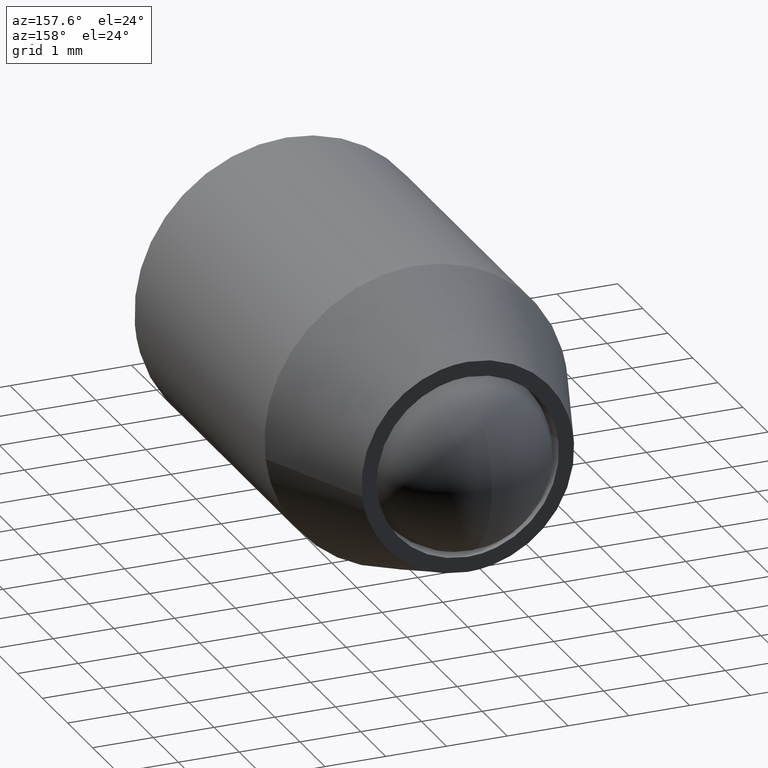
[diagram: clean part render]
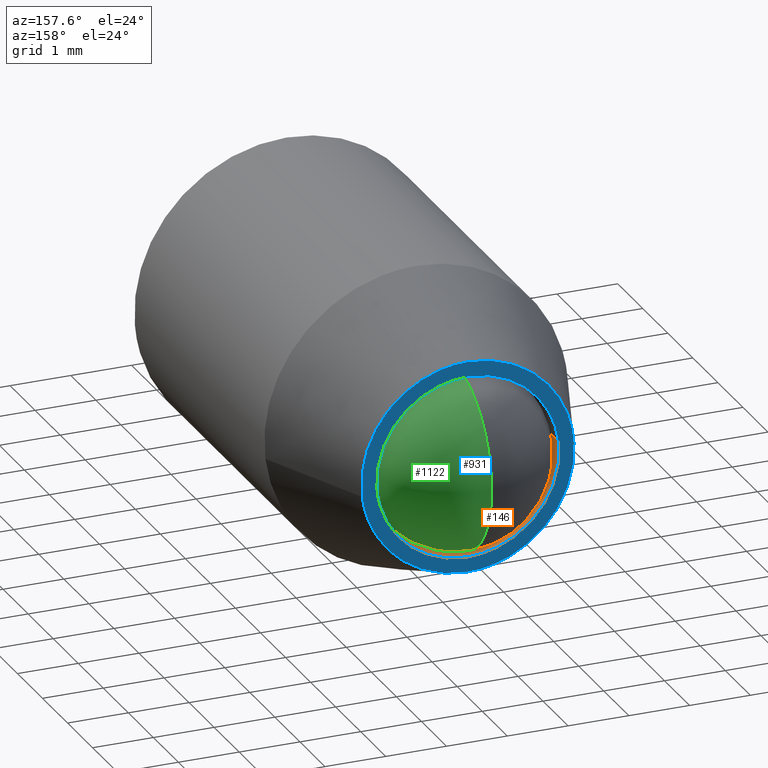
[diagram: same view with three faces highlighted in distinct colors, each labeled with its STEP entity id]
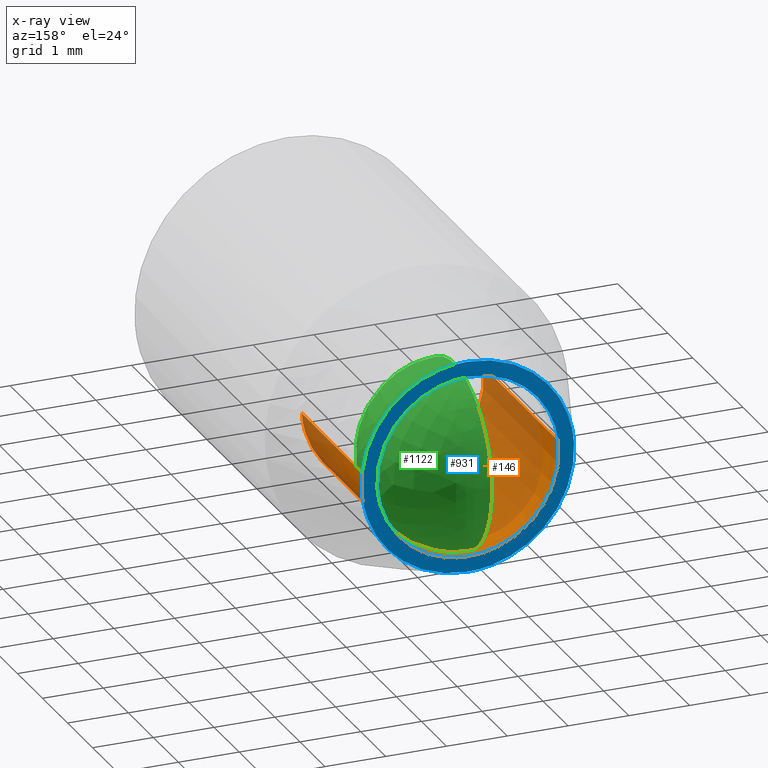
[diagram: x-ray of the same camera — body ghosted, the three highlighted faces saturated]
A machine part, auxiliary view with three faces highlighted in distinct colors.
The next image is the same camera in x-ray (body ghosted, the three faces saturated) — at least one of them is partly hidden behind the body in this view.
Their STEP definitions:

[orange] entity #146 — the highlighted face is a freeform B-spline surface patch.
#44=CARTESIAN_POINT('',(-1.489514289545500,0.075000000000000,0.177051351985138));
#45=CARTESIAN_POINT('',(-1.494581423172908,0.075000000000000,0.134422092956966));
#46=CARTESIAN_POINT('',(-1.497202197632800,0.075000000000000,0.091572809302285));
#47=CARTESIAN_POINT('',(-1.588775006935085,0.075000000000000,-1.405629388330515));
#48=CARTESIAN_POINT('',(-0.091572809302285,0.075000000000000,-1.497202197632800));
#49=CARTESIAN_POINT('',(1.405629388330515,0.075000000000000,-1.588775006935085));
#50=CARTESIAN_POINT('',(1.497202197632800,0.075000000000000,-0.091572809302285));
#51=CARTESIAN_POINT('',(-1.489514289545500,-3.076875000000002,0.177051351985138));
#52=CARTESIAN_POINT('',(-1.494581423172908,-3.076875000000001,0.134422092956966));
#53=CARTESIAN_POINT('',(-1.497202197632800,-3.076875000000001,0.091572809302285));
#54=CARTESIAN_POINT('',(-1.588775006935085,-3.076875000000000,-1.405629388330515));
#55=CARTESIAN_POINT('',(-0.091572809302285,-3.076875000000001,-1.497202197632800));
#56=CARTESIAN_POINT('',(1.405629388330515,-3.076875000000000,-1.588775006935085));
#57=CARTESIAN_POINT('',(1.497202197632800,-3.076875000000001,-0.091572809302285));
#65=(BOUNDED_SURFACE()B_SPLINE_SURFACE(2,1,((#44,#51),(#45,#52),(#46,#53),(#47,#54),(#48,#55),(#49,#56),(#50,#57)),.UNSPECIFIED.,.F.,.F.,.U.)B_SPLINE_SURFACE_WITH_KNOTS((3,2,2,3),(2,2),(3.078760800517997,3.141592653589793,4.712388980384690,6.283185307179586),(0.0,3.151875000000001),.UNSPECIFIED.)GEOMETRIC_REPRESENTATION_ITEM()RATIONAL_B_SPLINE_SURFACE(((0.977505800795127,0.977505800795127),(0.988284271247462,0.988284271247462),(1.0,1.0),(0.707106781186548,0.707106781186548),(1.0,1.0),(0.707106781186548,0.707106781186548),(1.0,1.0)))REPRESENTATION_ITEM('')SURFACE());
#66=CARTESIAN_POINT('',(-1.489514571576380,-3.000000000000006,0.177048979256939));
#67=VERTEX_POINT('',#66);
#68=CARTESIAN_POINT('',(0.0,-3.0,-1.500000000000000));
#69=VERTEX_POINT('',#68);
#70=CARTESIAN_POINT('',(-1.489514571576379,-3.000000000000006,0.177048979256939));
#71=CARTESIAN_POINT('',(-1.500000000000000,-3.0,0.088834980571960));
#72=CARTESIAN_POINT('',(-1.500000000000000,-3.0,0.0));
#73=CARTESIAN_POINT('',(-1.500000000000000,-3.0,-1.500000000000000));
#74=CARTESIAN_POINT('',(0.0,-3.0,-1.500000000000000));
#82=(BOUNDED_CURVE()B_SPLINE_CURVE(2,(#70,#71,#72,#73,#74),.UNSPECIFIED.,.F.,.U.)B_SPLINE_CURVE_WITH_KNOTS((3,2,3),(0.229562742730122,0.250000000000000,0.500000000000000),.UNSPECIFIED.)CURVE()GEOMETRIC_REPRESENTATION_ITEM()RATIONAL_B_SPLINE_CURVE((0.956027281859960,0.976056263738028,1.0,0.707106781186548,1.0))REPRESENTATION_ITEM(''));
#83=EDGE_CURVE('',#67,#69,#82,.T.);
#84=ORIENTED_EDGE('',*,*,#83,.T.);
#85=CARTESIAN_POINT('',(1.497202266602667,-2.999999999999996,-0.091571681640985));
#86=VERTEX_POINT('',#85);
#87=CARTESIAN_POINT('',(0.0,-3.0,-1.500000000000000));
#88=CARTESIAN_POINT('',(1.411060165124999,-3.0,-1.500000000000000));
#89=CARTESIAN_POINT('',(1.497202266602667,-2.999999999999996,-0.091571681640985));
#97=(BOUNDED_CURVE()B_SPLINE_CURVE(2,(#87,#88,#89),.UNSPECIFIED.,.F.,.U.)B_SPLINE_CURVE_WITH_KNOTS((3,3),(0.500000000000000,0.739333092200605),.UNSPECIFIED.)CURVE()GEOMETRIC_REPRESENTATION_ITEM()RATIONAL_B_SPLINE_CURVE((1.0,0.719603841027152,0.976072320199457))REPRESENTATION_ITEM(''));
#98=EDGE_CURVE('',#69,#86,#97,.T.);
#99=ORIENTED_EDGE('',*,*,#98,.T.);
#100=CARTESIAN_POINT('',(1.497202265752766,-6.938894E-017,-0.091571695537096));
#101=VERTEX_POINT('',#100);
#102=CARTESIAN_POINT('',(1.497202265752766,-6.938894E-017,-0.091571695537096));
#103=CARTESIAN_POINT('',(1.497202266602667,-2.999999999999996,-0.091571681640985));
#104=QUASI_UNIFORM_CURVE('',1,(#102,#103),.UNSPECIFIED.,.F.,.U.);
#105=EDGE_CURVE('',#101,#86,#104,.T.);
#106=ORIENTED_EDGE('',*,*,#105,.F.);
#107=CARTESIAN_POINT('',(0.0,0.0,-1.500000000000000));
#108=VERTEX_POINT('',#107);
#109=CARTESIAN_POINT('',(0.0,0.0,-1.500000000000000));
#110=CARTESIAN_POINT('',(1.411060152003934,0.0,-1.500000000000000));
#111=CARTESIAN_POINT('',(1.497202265752766,-6.938894E-017,-0.091571695537096));
#119=(BOUNDED_CURVE()B_SPLINE_CURVE(2,(#109,#110,#111),.UNSPECIFIED.,.F.,.U.)B_SPLINE_CURVE_WITH_KNOTS((3,3),(0.500000000000000,0.739333090599131),.UNSPECIFIED.)CURVE()GEOMETRIC_REPRESENTATION_ITEM()RATIONAL_B_SPLINE_CURVE((1.0,0.719603842903395,0.976072316767190))REPRESENTATION_ITEM(''));
#120=EDGE_CURVE('',#108,#101,#119,.T.);
#121=ORIENTED_EDGE('',*,*,#120,.F.);
#122=CARTESIAN_POINT('',(-1.489514568095193,-6.388714E-017,0.177049008544585));
#123=VERTEX_POINT('',#122);
#124=CARTESIAN_POINT('',(-1.489514568095193,-6.388714E-017,0.177049008544585));
#125=CARTESIAN_POINT('',(-1.500000000000000,0.0,0.088834995370588));
#126=CARTESIAN_POINT('',(-1.500000000000000,0.0,0.0));
#127=CARTESIAN_POINT('',(-1.500000000000000,0.0,-1.500000000000000));
#128=CARTESIAN_POINT('',(0.0,0.0,-1.500000000000000));
#136=(BOUNDED_CURVE()B_SPLINE_CURVE(2,(#124,#125,#126,#127,#128),.UNSPECIFIED.,.F.,.U.)B_SPLINE_CURVE_WITH_KNOTS((3,2,3),(0.229562739407087,0.250000000000000,0.500000000000000),.UNSPECIFIED.)CURVE()GEOMETRIC_REPRESENTATION_ITEM()RATIONAL_B_SPLINE_CURVE((0.956027275346658,0.976056259844850,1.0,0.707106781186548,1.0))REPRESENTATION_ITEM(''));
#137=EDGE_CURVE('',#123,#108,#136,.T.);
#138=ORIENTED_EDGE('',*,*,#137,.F.);
#139=CARTESIAN_POINT('',(-1.489514568095193,-6.388714E-017,0.177049008544585));
#140=CARTESIAN_POINT('',(-1.489514571576380,-3.000000000000006,0.177048979256939));
#141=QUASI_UNIFORM_CURVE('',1,(#139,#140),.UNSPECIFIED.,.F.,.U.);
#142=EDGE_CURVE('',#123,#67,#141,.T.);
#143=ORIENTED_EDGE('',*,*,#142,.T.);
#144=EDGE_LOOP('',(#84,#99,#106,#121,#138,#143));
#145=FACE_OUTER_BOUND('',#144,.T.);
#146=ADVANCED_FACE('',(#145),#65,.F.);

[blue] entity #931 — the highlighted face is a freeform B-spline surface patch.
#100=CARTESIAN_POINT('',(1.497202265752766,-6.938894E-017,-0.091571695537096));
#101=VERTEX_POINT('',#100);
#107=CARTESIAN_POINT('',(0.0,0.0,-1.500000000000000));
#108=VERTEX_POINT('',#107);
#109=CARTESIAN_POINT('',(0.0,0.0,-1.500000000000000));
#110=CARTESIAN_POINT('',(1.411060152003934,0.0,-1.500000000000000));
#111=CARTESIAN_POINT('',(1.497202265752766,-6.938894E-017,-0.091571695537096));
#119=(BOUNDED_CURVE()B_SPLINE_CURVE(2,(#109,#110,#111),.UNSPECIFIED.,.F.,.U.)B_SPLINE_CURVE_WITH_KNOTS((3,3),(0.500000000000000,0.739333090599131),.UNSPECIFIED.)CURVE()GEOMETRIC_REPRESENTATION_ITEM()RATIONAL_B_SPLINE_CURVE((1.0,0.719603842903395,0.976072316767190))REPRESENTATION_ITEM(''));
#120=EDGE_CURVE('',#108,#101,#119,.T.);
#122=CARTESIAN_POINT('',(-1.489514568095193,-6.388714E-017,0.177049008544585));
#123=VERTEX_POINT('',#122);
#124=CARTESIAN_POINT('',(-1.489514568095193,-6.388714E-017,0.177049008544585));
#125=CARTESIAN_POINT('',(-1.500000000000000,0.0,0.088834995370588));
#126=CARTESIAN_POINT('',(-1.500000000000000,0.0,0.0));
#127=CARTESIAN_POINT('',(-1.500000000000000,0.0,-1.500000000000000));
#128=CARTESIAN_POINT('',(0.0,0.0,-1.500000000000000));
#136=(BOUNDED_CURVE()B_SPLINE_CURVE(2,(#124,#125,#126,#127,#128),.UNSPECIFIED.,.F.,.U.)B_SPLINE_CURVE_WITH_KNOTS((3,2,3),(0.229562739407087,0.250000000000000,0.500000000000000),.UNSPECIFIED.)CURVE()GEOMETRIC_REPRESENTATION_ITEM()RATIONAL_B_SPLINE_CURVE((0.956027275346658,0.976056259844850,1.0,0.707106781186548,1.0))REPRESENTATION_ITEM(''));
#137=EDGE_CURVE('',#123,#108,#136,.T.);
#185=CARTESIAN_POINT('',(0.0,0.0,1.500000000000000));
#186=VERTEX_POINT('',#185);
#187=CARTESIAN_POINT('',(0.0,0.0,1.500000000000000));
#188=CARTESIAN_POINT('',(-1.332263899720056,0.0,1.500000000000001));
#189=CARTESIAN_POINT('',(-1.489514568095193,-6.388714E-017,0.177049008544585));
#197=(BOUNDED_CURVE()B_SPLINE_CURVE(2,(#187,#188,#189),.UNSPECIFIED.,.F.,.U.)B_SPLINE_CURVE_WITH_KNOTS((3,3),(0.0,0.229562739407087),.UNSPECIFIED.)CURVE()GEOMETRIC_REPRESENTATION_ITEM()RATIONAL_B_SPLINE_CURVE((1.0,0.731050521341698,0.956027275346658))REPRESENTATION_ITEM(''));
#198=EDGE_CURVE('',#186,#123,#197,.T.);
#200=CARTESIAN_POINT('',(1.497202265752766,-6.938894E-017,-0.091571695537096));
#201=CARTESIAN_POINT('',(1.500000000000000,0.0,-0.045828586503876));
#202=CARTESIAN_POINT('',(1.500000000000000,0.0,0.0));
#203=CARTESIAN_POINT('',(1.500000000000000,0.0,1.500000000000000));
#204=CARTESIAN_POINT('',(0.0,0.0,1.500000000000000));
#212=(BOUNDED_CURVE()B_SPLINE_CURVE(2,(#200,#201,#202,#203,#204),.UNSPECIFIED.,.F.,.U.)B_SPLINE_CURVE_WITH_KNOTS((3,2,3),(0.739333090599131,0.750000000000000,1.0),.UNSPECIFIED.)CURVE()GEOMETRIC_REPRESENTATION_ITEM()RATIONAL_B_SPLINE_CURVE((0.976072316767190,0.987502938283152,1.0,0.707106781186548,1.0))REPRESENTATION_ITEM(''));
#213=EDGE_CURVE('',#101,#186,#212,.T.);
#492=CARTESIAN_POINT('',(1.737766671136094,-1.200028E-012,-0.206559910655735));
#493=VERTEX_POINT('',#492);
#499=CARTESIAN_POINT('',(0.0,0.0,1.750000000000000));
#500=VERTEX_POINT('',#499);
#501=CARTESIAN_POINT('',(1.737766671136094,-1.200028E-012,-0.206559910655735));
#502=CARTESIAN_POINT('',(1.750000000000000,0.0,-0.103642209397266));
#503=CARTESIAN_POINT('',(1.750000000000000,0.0,-5.143347E-016));
#504=CARTESIAN_POINT('',(1.750000000000000,0.0,1.750000000000000));
#505=CARTESIAN_POINT('',(0.0,0.0,1.750000000000000));
#513=(BOUNDED_CURVE()B_SPLINE_CURVE(2,(#501,#502,#503,#504,#505),.UNSPECIFIED.,.F.,.U.)B_SPLINE_CURVE_WITH_KNOTS((3,2,3),(0.229562473514408,0.250000000000000,0.500000000000000),.UNSPECIFIED.)CURVE()GEOMETRIC_REPRESENTATION_ITEM()RATIONAL_B_SPLINE_CURVE((0.956026754185463,0.976055948332199,1.0,0.707106781186547,1.0))REPRESENTATION_ITEM(''));
#514=EDGE_CURVE('',#493,#500,#513,.T.);
#516=CARTESIAN_POINT('',(-1.746735897238305,-1.256870E-012,0.106834944192873));
#517=VERTEX_POINT('',#516);
#518=CARTESIAN_POINT('',(0.0,0.0,1.750000000000000));
#519=CARTESIAN_POINT('',(-1.646235617072029,0.0,1.749999999999999));
#520=CARTESIAN_POINT('',(-1.746735897238305,-1.256870E-012,0.106834944192873));
#528=(BOUNDED_CURVE()B_SPLINE_CURVE(2,(#518,#519,#520),.UNSPECIFIED.,.F.,.U.)B_SPLINE_CURVE_WITH_KNOTS((3,3),(0.500000000000000,0.739332962240615),.UNSPECIFIED.)CURVE()GEOMETRIC_REPRESENTATION_ITEM()RATIONAL_B_SPLINE_CURVE((1.0,0.719603993284751,0.976072041670301))REPRESENTATION_ITEM(''));
#529=EDGE_CURVE('',#500,#517,#528,.T.);
#562=CARTESIAN_POINT('',(0.0,0.0,-1.750000000000000));
#563=VERTEX_POINT('',#562);
#564=CARTESIAN_POINT('',(-1.746735897238305,-1.256870E-012,0.106834944192873));
#565=CARTESIAN_POINT('',(-1.750000000000000,0.0,0.053467335779395));
#566=CARTESIAN_POINT('',(-1.750000000000000,0.0,-5.143347E-016));
#567=CARTESIAN_POINT('',(-1.750000000000000,0.0,-1.750000000000000));
#568=CARTESIAN_POINT('',(0.0,0.0,-1.750000000000000));
#576=(BOUNDED_CURVE()B_SPLINE_CURVE(2,(#564,#565,#566,#567,#568),.UNSPECIFIED.,.F.,.U.)B_SPLINE_CURVE_WITH_KNOTS((3,2,3),(0.739332962240616,0.750000000000000,1.0),.UNSPECIFIED.)CURVE()GEOMETRIC_REPRESENTATION_ITEM()RATIONAL_B_SPLINE_CURVE((0.976072041670303,0.987502787901797,1.0,0.707106781186547,1.0))REPRESENTATION_ITEM(''));
#577=EDGE_CURVE('',#517,#563,#576,.T.);
#579=CARTESIAN_POINT('',(0.0,0.0,-1.750000000000000));
#580=CARTESIAN_POINT('',(1.554305420403444,0.0,-1.750000000000000));
#581=CARTESIAN_POINT('',(1.737766671136095,-1.200028E-012,-0.206559910655735));
#589=(BOUNDED_CURVE()B_SPLINE_CURVE(2,(#579,#580,#581),.UNSPECIFIED.,.F.,.U.)B_SPLINE_CURVE_WITH_KNOTS((3,3),(0.0,0.229562473514408),.UNSPECIFIED.)CURVE()GEOMETRIC_REPRESENTATION_ITEM()RATIONAL_B_SPLINE_CURVE((1.0,0.731050832854348,0.956026754185463))REPRESENTATION_ITEM(''));
#590=EDGE_CURVE('',#563,#493,#589,.T.);
#914=CARTESIAN_POINT('',(-1.924782399771807,0.0,1.924824993216321));
#915=CARTESIAN_POINT('',(-1.924782399771807,0.0,-1.924825087093637));
#916=CARTESIAN_POINT('',(1.924793164370653,0.0,1.924824993216321));
#917=CARTESIAN_POINT('',(1.924793164370653,0.0,-1.924825087093637));
#918=B_SPLINE_SURFACE_WITH_KNOTS('',1,1,((#914,#916),(#915,#917)),.UNSPECIFIED.,.F.,.F.,.U.,(2,2),(2,2),(0.0,3.849650080309957),(0.0,3.849575564142461),.UNSPECIFIED.);
#919=ORIENTED_EDGE('',*,*,#577,.F.);
#920=ORIENTED_EDGE('',*,*,#529,.F.);
#921=ORIENTED_EDGE('',*,*,#514,.F.);
#922=ORIENTED_EDGE('',*,*,#590,.F.);
#923=EDGE_LOOP('',(#919,#920,#921,#922));
#924=FACE_OUTER_BOUND('',#923,.T.);
#925=ORIENTED_EDGE('',*,*,#120,.T.);
#926=ORIENTED_EDGE('',*,*,#213,.T.);
#927=ORIENTED_EDGE('',*,*,#198,.T.);
#928=ORIENTED_EDGE('',*,*,#137,.T.);
#929=EDGE_LOOP('',(#925,#926,#927,#928));
#930=FACE_BOUND('',#929,.T.);
#931=ADVANCED_FACE('',(#924,#930),#918,.F.);

[green] entity #1122 — the highlighted face is a freeform B-spline surface patch.
#1037=CARTESIAN_POINT('',(0.0,0.950000000000000,4.806580E-016));
#1038=VERTEX_POINT('',#1037);
#1039=CARTESIAN_POINT('',(0.0,-2.050000000000000,4.806580E-016));
#1040=VERTEX_POINT('',#1039);
#1041=CARTESIAN_POINT('',(0.0,0.950000000000000,4.806580E-016));
#1042=CARTESIAN_POINT('',(0.0,0.950000000000000,-1.500000000000000));
#1043=CARTESIAN_POINT('',(0.0,-0.550000000000000,-1.500000000000000));
#1044=CARTESIAN_POINT('',(0.0,-2.050000000000001,-1.500000000000000));
#1045=CARTESIAN_POINT('',(0.0,-2.050000000000000,4.806580E-016));
#1053=(BOUNDED_CURVE()B_SPLINE_CURVE(2,(#1041,#1042,#1043,#1044,#1045),.UNSPECIFIED.,.F.,.U.)B_SPLINE_CURVE_WITH_KNOTS((3,2,3),(0.0,0.500000000000000,1.0),.UNSPECIFIED.)CURVE()GEOMETRIC_REPRESENTATION_ITEM()RATIONAL_B_SPLINE_CURVE((1.0,0.707106781186548,1.0,0.707106781186548,1.0))REPRESENTATION_ITEM(''));
#1054=EDGE_CURVE('',#1038,#1040,#1053,.T.);
#1056=CARTESIAN_POINT('',(0.0,0.950000000000000,4.806580E-016));
#1057=CARTESIAN_POINT('',(0.0,0.950000000000000,1.500000000000001));
#1058=CARTESIAN_POINT('',(0.0,-0.550000000000000,1.500000000000000));
#1059=CARTESIAN_POINT('',(0.0,-2.050000000000001,1.500000000000001));
#1060=CARTESIAN_POINT('',(0.0,-2.050000000000000,4.806580E-016));
#1068=(BOUNDED_CURVE()B_SPLINE_CURVE(2,(#1056,#1057,#1058,#1059,#1060),.UNSPECIFIED.,.F.,.U.)B_SPLINE_CURVE_WITH_KNOTS((3,2,3),(0.0,0.500000000000000,1.0),.UNSPECIFIED.)CURVE()GEOMETRIC_REPRESENTATION_ITEM()RATIONAL_B_SPLINE_CURVE((1.0,0.707106781186548,1.0,0.707106781186548,1.0))REPRESENTATION_ITEM(''));
#1069=EDGE_CURVE('',#1038,#1040,#1068,.T.);
#1074=CARTESIAN_POINT('',(-0.562500000000000,-1.533258295159517,-0.983258295159517));
#1075=CARTESIAN_POINT('',(-0.367924528301887,-1.440498078635034,-1.187330771513379));
#1076=CARTESIAN_POINT('',(-0.071428571428571,-0.924574588632197,-1.498298354528787));
#1077=CARTESIAN_POINT('',(-0.071428571428571,-0.175425411367803,-1.498298354528787));
#1078=CARTESIAN_POINT('',(-0.367924528301887,0.340498078635034,-1.187330771513379));
#1079=CARTESIAN_POINT('',(-0.562500000000000,0.433258295159517,-0.983258295159517));
#1080=CARTESIAN_POINT('',(-0.367924528301887,-1.737330771513379,-0.890498078635034));
#1081=CARTESIAN_POINT('',(-0.071428571428571,-1.673723765896591,-1.123723765896590));
#1082=CARTESIAN_POINT('',(0.435483870967742,-1.057488152340395,-1.522464457021187));
#1083=CARTESIAN_POINT('',(0.435483870967742,-0.042511847659604,-1.522464457021187));
#1084=CARTESIAN_POINT('',(-0.071428571428571,0.573723765896590,-1.123723765896590));
#1085=CARTESIAN_POINT('',(-0.367924528301887,0.637330771513379,-0.890498078635034));
#1086=CARTESIAN_POINT('',(-0.071428571428571,-2.048298354528788,-0.374574588632196));
#1087=CARTESIAN_POINT('',(0.435483870967742,-2.072464457021187,-0.507488152340395));
#1088=CARTESIAN_POINT('',(1.500000000000000,-1.336606636127613,-0.786606636127613));
#1089=CARTESIAN_POINT('',(1.500000000000000,0.236606636127613,-0.786606636127613));
#1090=CARTESIAN_POINT('',(0.435483870967742,0.972464457021187,-0.507488152340395));
#1091=CARTESIAN_POINT('',(-0.071428571428571,0.948298354528788,-0.374574588632196));
#1092=CARTESIAN_POINT('',(-0.071428571428571,-2.048298354528788,0.374574588632197));
#1093=CARTESIAN_POINT('',(0.435483870967742,-2.072464457021187,0.507488152340396));
#1094=CARTESIAN_POINT('',(1.500000000000000,-1.336606636127613,0.786606636127614));
#1095=CARTESIAN_POINT('',(1.500000000000000,0.236606636127613,0.786606636127614));
#1096=CARTESIAN_POINT('',(0.435483870967742,0.972464457021187,0.507488152340396));
#1097=CARTESIAN_POINT('',(-0.071428571428571,0.948298354528788,0.374574588632197));
#1098=CARTESIAN_POINT('',(-0.367924528301887,-1.737330771513379,0.890498078635034));
#1099=CARTESIAN_POINT('',(-0.071428571428571,-1.673723765896591,1.123723765896591));
#1100=CARTESIAN_POINT('',(0.435483870967742,-1.057488152340395,1.522464457021188));
#1101=CARTESIAN_POINT('',(0.435483870967742,-0.042511847659604,1.522464457021188));
#1102=CARTESIAN_POINT('',(-0.071428571428571,0.573723765896590,1.123723765896591));
#1103=CARTESIAN_POINT('',(-0.367924528301887,0.637330771513379,0.890498078635034));
#1104=CARTESIAN_POINT('',(-0.562500000000000,-1.533258295159517,0.983258295159517));
#1105=CARTESIAN_POINT('',(-0.367924528301887,-1.440498078635034,1.187330771513379));
#1106=CARTESIAN_POINT('',(-0.071428571428571,-0.924574588632197,1.498298354528788));
#1107=CARTESIAN_POINT('',(-0.071428571428571,-0.175425411367803,1.498298354528788));
#1108=CARTESIAN_POINT('',(-0.367924528301887,0.340498078635034,1.187330771513379));
#1109=CARTESIAN_POINT('',(-0.562500000000000,0.433258295159517,0.983258295159517));
#1117=(BOUNDED_SURFACE()B_SPLINE_SURFACE(2,2,((#1074,#1080,#1086,#1092,#1098,#1104),(#1075,#1081,#1087,#1093,#1099,#1105),(#1076,#1082,#1088,#1094,#1100,#1106),(#1077,#1083,#1089,#1095,#1101,#1107),(#1078,#1084,#1090,#1096,#1102,#1108),(#1079,#1085,#1091,#1097,#1103,#1109)),.UNSPECIFIED.,.F.,.F.,.U.)GEOMETRIC_REPRESENTATION_ITEM()QUASI_UNIFORM_SURFACE()RATIONAL_B_SPLINE_SURFACE(((3.200000000000000,2.650000000000000,2.100000000000000,2.100000000000000,2.650000000000000,3.200000000000000),(2.650000000000000,2.100000000000000,1.550000000000000,1.550000000000000,2.100000000000000,2.650000000000000),(2.100000000000000,1.550000000000000,1.0,1.0,1.550000000000000,2.100000000000000),(2.100000000000000,1.550000000000000,1.0,1.0,1.550000000000000,2.100000000000000),(2.650000000000000,2.100000000000000,1.550000000000000,1.550000000000000,2.100000000000000,2.650000000000000),(3.200000000000000,2.650000000000000,2.100000000000000,2.100000000000000,2.650000000000000,3.200000000000000)))REPRESENTATION_ITEM('')SURFACE());
#1118=ORIENTED_EDGE('',*,*,#1069,.T.);
#1119=ORIENTED_EDGE('',*,*,#1054,.F.);
#1120=EDGE_LOOP('',(#1118,#1119));
#1121=FACE_OUTER_BOUND('',#1120,.T.);
#1122=ADVANCED_FACE('',(#1121),#1117,.T.);